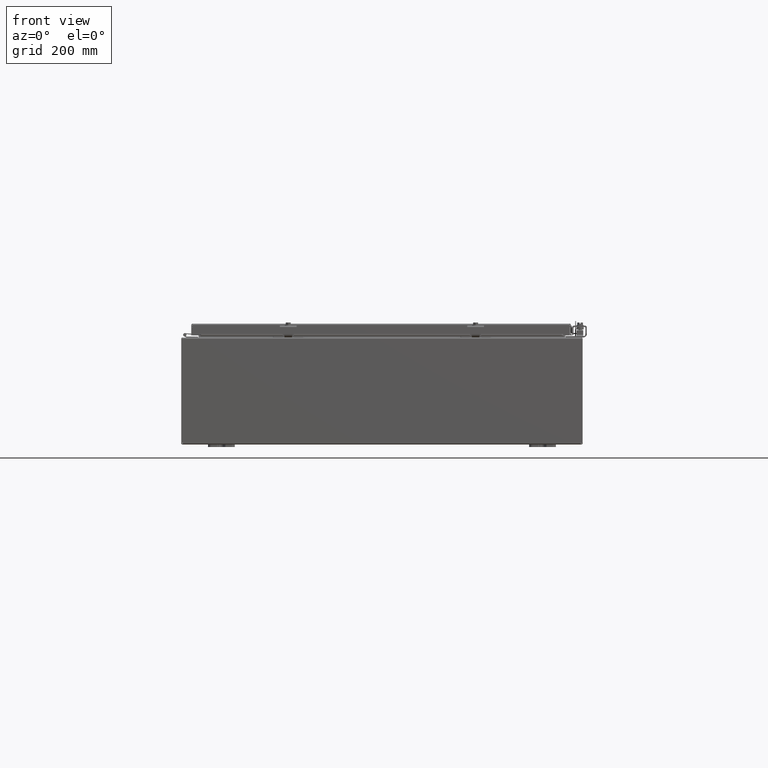
[diagram: clean part render]
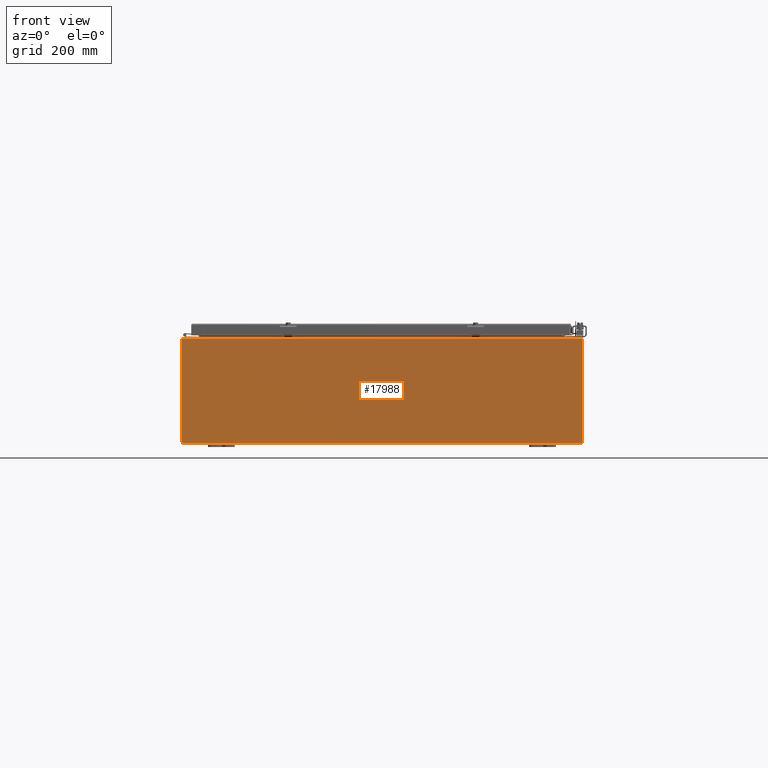
[diagram: same view with one face highlighted and labeled with its STEP entity id]
A machine part, front view. The second image highlights one B-rep face of the part: STEP entity #17988.
In plain terms, the highlighted planar face has unit normal (0, 1, 0).
Its self-contained STEP definition (entity closure, byte-faithful):
#657 = EDGE_CURVE ( 'NONE', #23547, #54680, #50646, .T. ) ;
#2088 = DIRECTION ( 'NONE',  ( 0.0000000000000000000, 0.0000000000000000000, -1.000000000000000000 ) ) ;
#3101 = CARTESIAN_POINT ( 'NONE',  ( 14.96299999999999400, -21.00000000000000400, 0.1274501355917690100 ) ) ;
#3169 = CARTESIAN_POINT ( 'NONE',  ( 14.96299999999999400, -21.00000000000004300, 7.894750000000000200 ) ) ;
#3862 = EDGE_CURVE ( 'NONE', #52907, #47851, #14503, .T. ) ;
#6162 = AXIS2_PLACEMENT_3D ( 'NONE', #30578, #30481, #30434 ) ;
#6362 = DIRECTION ( 'NONE',  ( 1.000000000000000000, 0.0000000000000000000, 0.0000000000000000000 ) ) ;
#6431 = DIRECTION ( 'NONE',  ( -0.0000000000000000000, 1.000000000000000000, 0.0000000000000000000 ) ) ;
#6441 = CARTESIAN_POINT ( 'NONE',  ( -2.822639000000000200E-015, -21.00000000000002500, 4.009483078884576600 ) ) ;
#6974 = PLANE ( 'NONE',  #27587 ) ;
#7259 = LINE ( 'NONE', #40665, #43770 ) ;
#10484 = DIRECTION ( 'NONE',  ( -1.000000000000000000, 0.0000000000000000000, 0.0000000000000000000 ) ) ;
#11157 = DIRECTION ( 'NONE',  ( -1.000000000000000000, 0.0000000000000000000, 0.0000000000000000000 ) ) ;
#12526 = EDGE_CURVE ( 'NONE', #14254, #47851, #20119, .T. ) ;
#14254 = VERTEX_POINT ( 'NONE', #56816 ) ;
#14503 = LINE ( 'NONE', #3169, #38375 ) ;
#15406 = VECTOR ( 'NONE', #11157, 39.37007874015748100 ) ;
#15607 = VECTOR ( 'NONE', #10484, 39.37007874015748100 ) ;
#15679 = ORIENTED_EDGE ( 'NONE', *, *, #60291, .T. ) ;
#17988 = ADVANCED_FACE ( 'NONE', ( #35384 ), #6974, .F. ) ;
#18084 = CARTESIAN_POINT ( 'NONE',  ( -14.96299999999999900, -21.00000000000004300, 7.894750000000004600 ) ) ;
#20119 = CIRCLE ( 'NONE', #6162, 0.07000000000000007600 ) ;
#20396 = ORIENTED_EDGE ( 'NONE', *, *, #58203, .T. ) ;
#22296 = EDGE_CURVE ( 'NONE', #54680, #14254, #47471, .T. ) ;
#22450 = VERTEX_POINT ( 'NONE', #47142 ) ;
#23214 = EDGE_LOOP ( 'NONE', ( #20396, #28925, #15679, #55193, #44781, #28131, #50667, #36213 ) ) ;
#23547 = VERTEX_POINT ( 'NONE', #54205 ) ;
#25226 = CARTESIAN_POINT ( 'NONE',  ( 14.91495145654399800, -21.00000000000005000, 7.894749999999999300 ) ) ;
#25641 = VERTEX_POINT ( 'NONE', #56472 ) ;
#27587 = AXIS2_PLACEMENT_3D ( 'NONE', #6441, #6431, #6362 ) ;
#28131 = ORIENTED_EDGE ( 'NONE', *, *, #22296, .T. ) ;
#28925 = ORIENTED_EDGE ( 'NONE', *, *, #54648, .T. ) ;
#30434 = DIRECTION ( 'NONE',  ( 1.000000000000000000, 0.0000000000000000000, 0.0000000000000000000 ) ) ;
#30481 = DIRECTION ( 'NONE',  ( 0.0000000000000000000, 1.000000000000000000, 0.0000000000000000000 ) ) ;
#30523 = DIRECTION ( 'NONE',  ( 0.0000000000000000000, 0.0000000000000000000, 1.000000000000000000 ) ) ;
#30578 = CARTESIAN_POINT ( 'NONE',  ( 14.93789192111541900, -21.00000000000000400, 0.06210807888457600700 ) ) ;
#31068 = DIRECTION ( 'NONE',  ( -1.000000000000000000, 0.0000000000000000000, 0.0000000000000000000 ) ) ;
#34829 = EDGE_CURVE ( 'NONE', #23547, #40317, #61223, .T. ) ;
#35061 = CARTESIAN_POINT ( 'NONE',  ( -14.88276683932436100, -21.00000000000000700, 0.1052499999999980100 ) ) ;
#35384 = FACE_OUTER_BOUND ( 'NONE', #23214, .T. ) ;
#35401 = AXIS2_PLACEMENT_3D ( 'NONE', #53086, #53022, #52909 ) ;
#36213 = ORIENTED_EDGE ( 'NONE', *, *, #3862, .F. ) ;
#38375 = VECTOR ( 'NONE', #2088, 39.37007874015748100 ) ;
#40317 = VERTEX_POINT ( 'NONE', #18084 ) ;
#40665 = CARTESIAN_POINT ( 'NONE',  ( 14.96299999999999900, -21.00000000000005000, 7.894749999999999300 ) ) ;
#40770 = LINE ( 'NONE', #25226, #15406 ) ;
#43770 = VECTOR ( 'NONE', #31068, 39.37007874015748100 ) ;
#44781 = ORIENTED_EDGE ( 'NONE', *, *, #657, .T. ) ;
#45224 = CARTESIAN_POINT ( 'NONE',  ( -14.96299999999999900, -21.00000000000000700, 0.1274501355917630200 ) ) ;
#47142 = CARTESIAN_POINT ( 'NONE',  ( -14.91495145654399800, -21.00000000000005000, 7.894750000000001000 ) ) ;
#47471 = LINE ( 'NONE', #53431, #60084 ) ;
#47851 = VERTEX_POINT ( 'NONE', #3101 ) ;
#50646 = CIRCLE ( 'NONE', #35401, 0.07000000000000007600 ) ;
#50667 = ORIENTED_EDGE ( 'NONE', *, *, #12526, .T. ) ;
#52907 = VERTEX_POINT ( 'NONE', #56038 ) ;
#52909 = DIRECTION ( 'NONE',  ( 1.000000000000000000, 0.0000000000000000000, 0.0000000000000000000 ) ) ;
#53022 = DIRECTION ( 'NONE',  ( 0.0000000000000000000, 1.000000000000000000, 0.0000000000000000000 ) ) ;
#53086 = CARTESIAN_POINT ( 'NONE',  ( -14.93789192111541900, -21.00000000000000700, 0.06210807888457600700 ) ) ;
#53199 = DIRECTION ( 'NONE',  ( 1.000000000000000000, 0.0000000000000000000, 0.0000000000000000000 ) ) ;
#53431 = CARTESIAN_POINT ( 'NONE',  ( -14.88276683932436000, -21.00000000000000700, 0.1052499999999980100 ) ) ;
#53925 = LINE ( 'NONE', #58481, #15607 ) ;
#54205 = CARTESIAN_POINT ( 'NONE',  ( -14.96300000000000500, -21.00000000000000700, 0.1274501355917630200 ) ) ;
#54648 = EDGE_CURVE ( 'NONE', #25641, #22450, #40770, .T. ) ;
#54680 = VERTEX_POINT ( 'NONE', #35061 ) ;
#55193 = ORIENTED_EDGE ( 'NONE', *, *, #34829, .F. ) ;
#55393 = VECTOR ( 'NONE', #30523, 39.37007874015748100 ) ;
#56038 = CARTESIAN_POINT ( 'NONE',  ( 14.96299999999999900, -21.00000000000003900, 7.894749999999999300 ) ) ;
#56472 = CARTESIAN_POINT ( 'NONE',  ( 14.91495145654399800, -21.00000000000004300, 7.894749999999996600 ) ) ;
#56816 = CARTESIAN_POINT ( 'NONE',  ( 14.88276683932436500, -21.00000000000000400, 0.1052499999999995100 ) ) ;
#58203 = EDGE_CURVE ( 'NONE', #52907, #25641, #7259, .T. ) ;
#58481 = CARTESIAN_POINT ( 'NONE',  ( -14.91495145654400100, -21.00000000000005300, 7.894750000000004600 ) ) ;
#60084 = VECTOR ( 'NONE', #53199, 39.37007874015748100 ) ;
#60291 = EDGE_CURVE ( 'NONE', #22450, #40317, #53925, .T. ) ;
#61223 = LINE ( 'NONE', #45224, #55393 ) ;